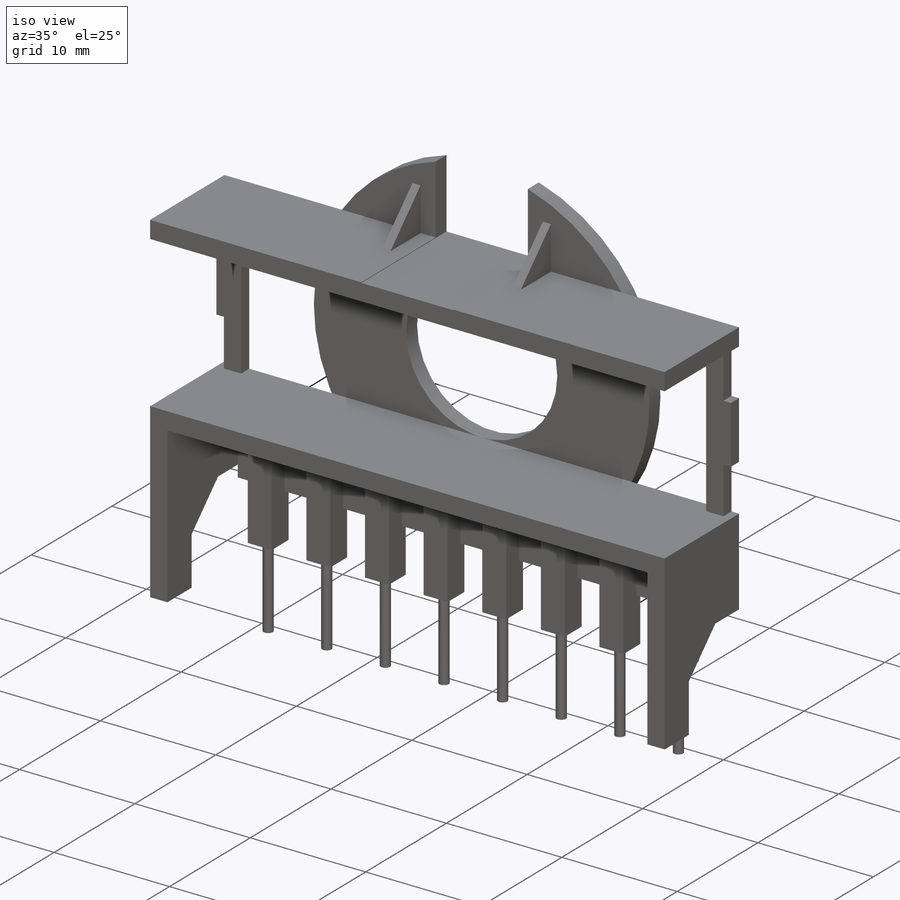
[diagram: iso view]
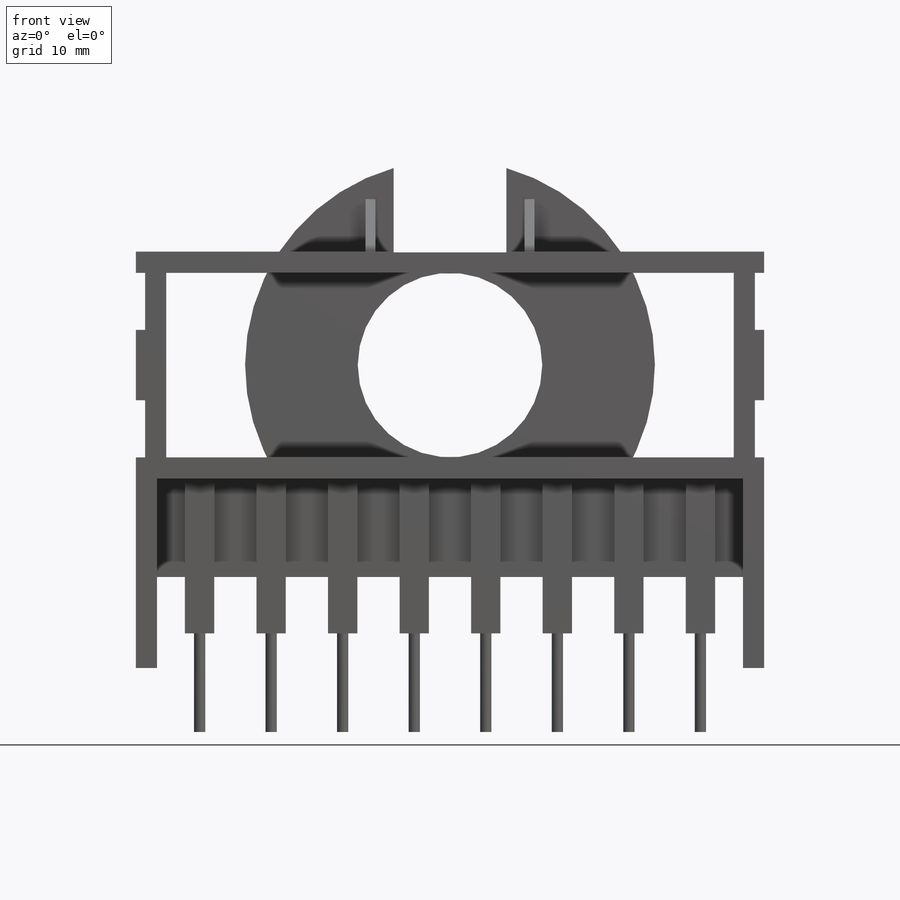
[diagram: front view]
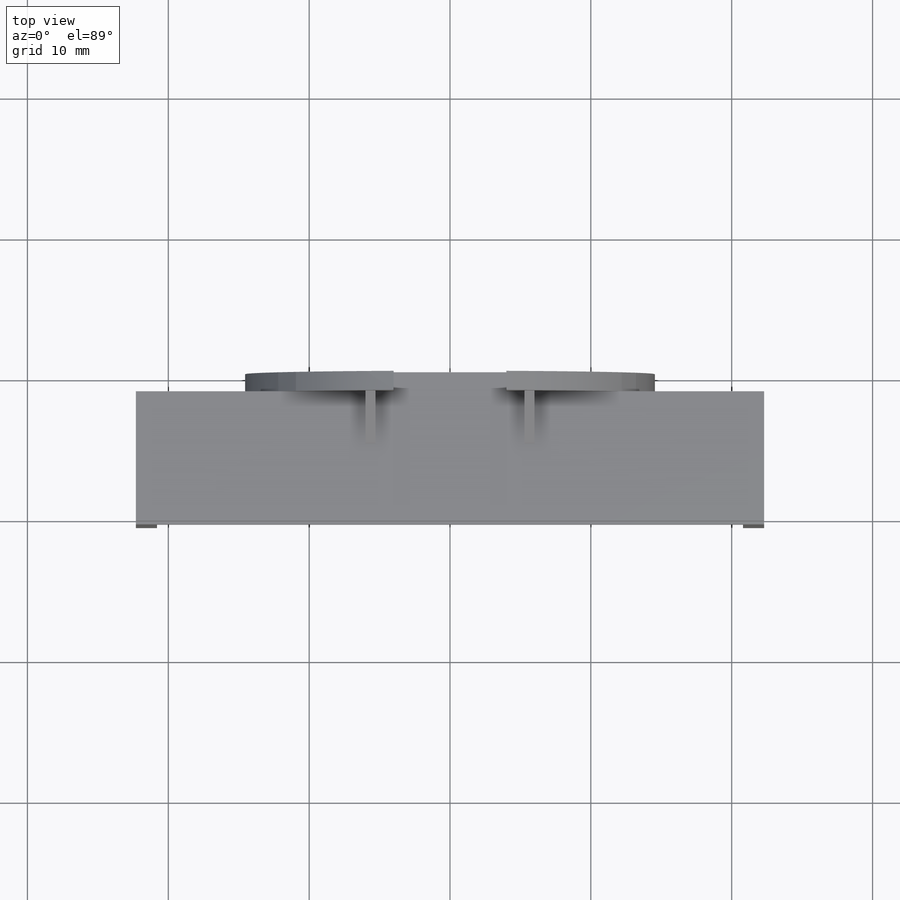
[diagram: top view]
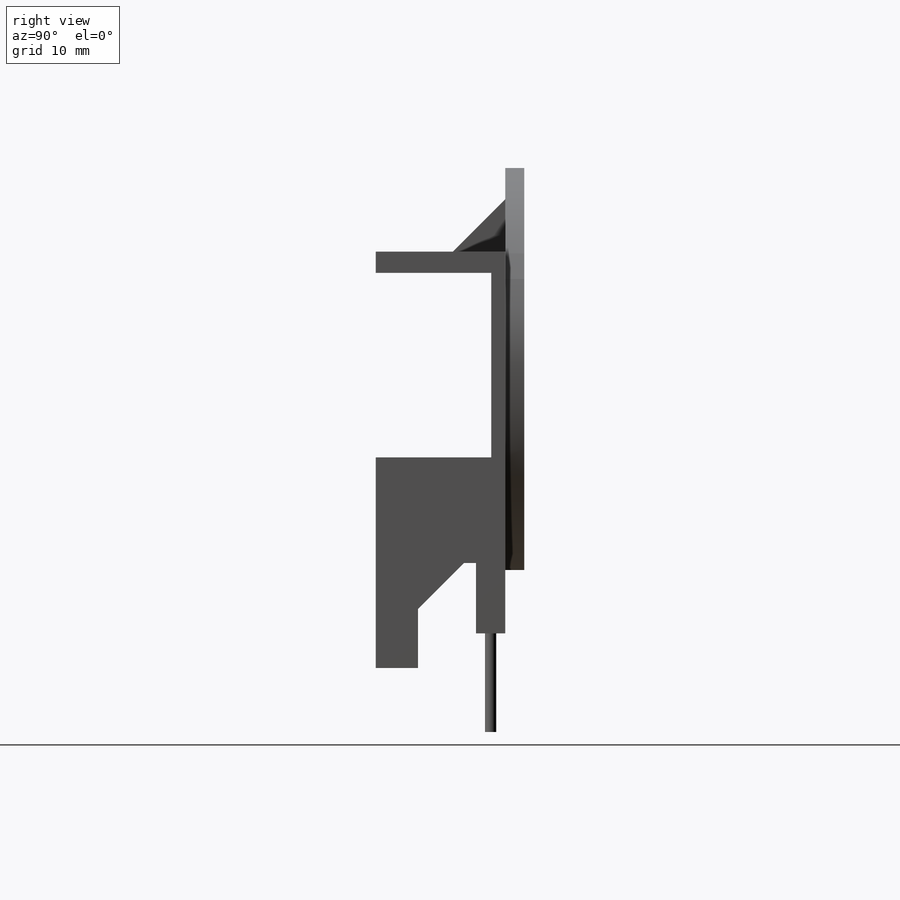
[diagram: right view]
SOLIDWORKS PART (.sldprt)
format: sldprt  version: not decoded by parser v0  size: 425,472 bytes
history: native  units: mm
features: sketch x8, extrude x6, cut_extrude x2, material x1 (+12 scaffold rows collapsed)
feature tree (29):
  scaffold x12  (default folders/planes/origin — collapsed)
  material  "Material <not specified>"
  sketch  "Sketch1"  dims[D1=29.1mm D2=13.1mm D3=8.0mm D4=8.0mm]
  extrude  "Boss-Extrude1"  Depth=1.35mm
  sketch  "Sketch2"  dims[D1=44.6mm D2=1.5mm D3=1.5mm D4=1.5mm D5=6.0mm D6=0.7mm D7=6.0mm D8=35.5mm]
  extrude  "Boss-Extrude2"  Depth=9.2mm
  sketch  "Sketch3"  dims[c1.D1=40.3mm c1.D2=20.15mm c1.D3=1.5mm c1.D4=1.5mm c2.D1=40.3mm c2.D2=20.15mm c2.D5=44.6mm c2.D6=22.3mm c2.D7=5.0mm c2.D8=2.5mm c2.D9=5.0mm]
  extrude  "Boss-Extrude3"  Depth=1mm
  sketch  "Sketch5"  dims[c1.D1=~4.796217mm c2.D1=45.0deg]
  cut_extrude  "Cut-Extrude1"  [1 undecoded]
  sketch  "Sketch6"  dims[c1.D1=~4.620955mm c2.D1=135.0deg c2.D2=7.5mm c2.D3=3.0mm]
  cut_extrude  "Cut-Extrude2"  [1 undecoded]
  sketch  "Sketch7"  dims[D1=7.0mm D2=20.8mm]
  extrude  "Boss-Extrude4"  Depth=0.5mm
  sketch  "Sketch8"  dims[D2=0.8mm D1=2.39mm D3=2.54mm D4=5.08mm D5=5.08mm D6=5.08mm D7=5.08mm D8=5.08mm D9=5.08mm D10=5.08mm]
  extrude  "Pins"  Depth=11mm
  sketch  "Sketch9"  dims[D1=2.08mm]
  extrude  "Boss-Extrude6"  Depth=11mm
decode coverage: 14 of 16 modeling features carry decoded parameters
note: ~ marks probable driven/reference dimensions
note: 2 parameter values undecoded
note: suppression state not decoded; provenance and decode notes live in map.json
